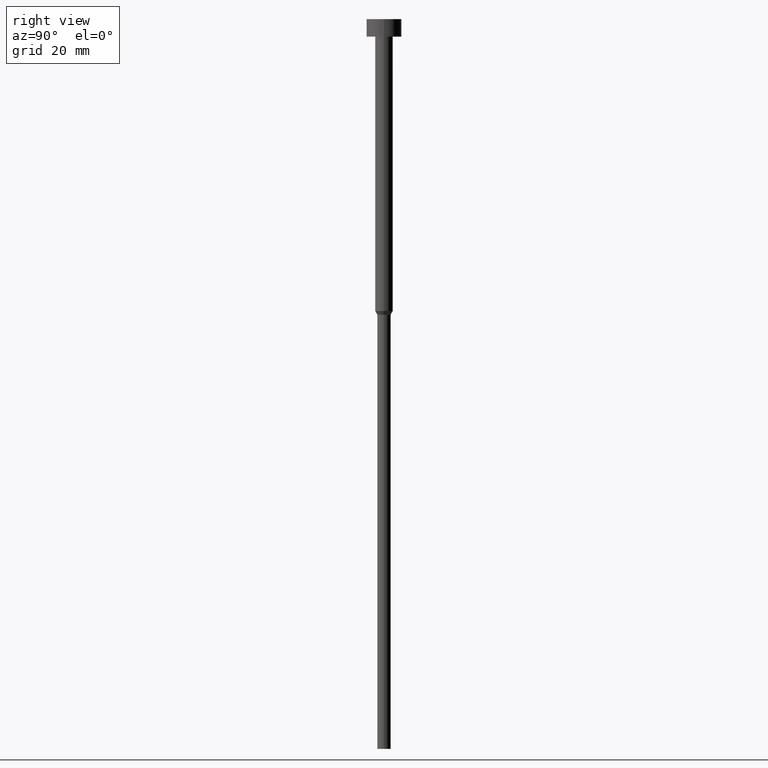
[diagram: clean part render]
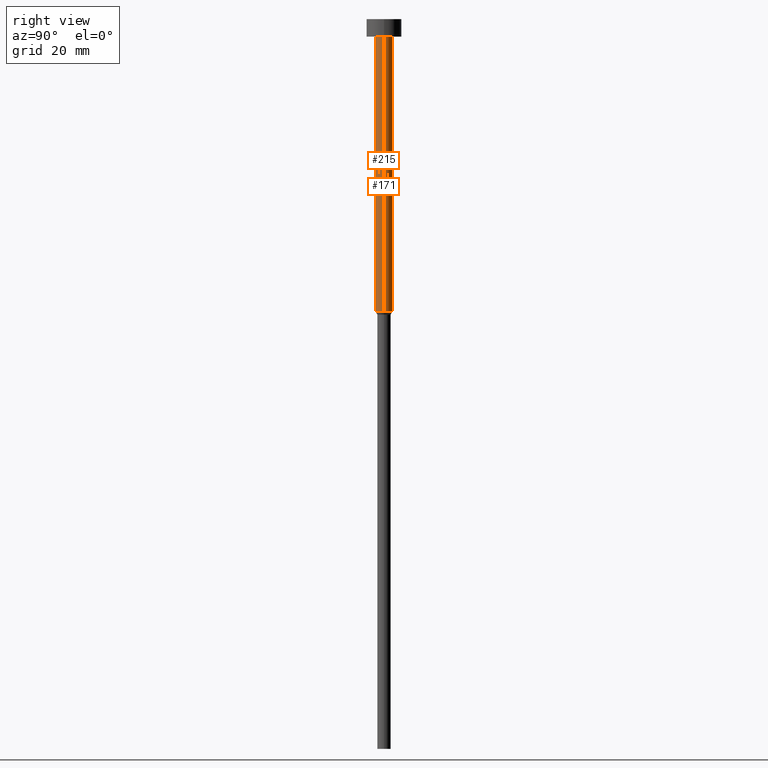
[diagram: same view with one multi-face feature highlighted, each face labeled with its STEP entity id]
A machine part, right view. The highlighted faces form ONE feature: a constant-radius fillet chain: 2 tangent blend faces with common blend radius 1.5 mm. The faces share edges in the B-rep.
Their STEP definitions:
[1] entity #215 (Cylinder):
#15 = CARTESIAN_POINT ( 'NONE',  ( 1.500000000000000000, 0.000000000000000000, -50.00000000000000000 ) ) ;
#23 = EDGE_LOOP ( 'NONE', ( #343, #341, #154, #83 ) ) ;
#27 = EDGE_CURVE ( 'NONE', #140, #64, #318, .T. ) ;
#32 = AXIS2_PLACEMENT_3D ( 'NONE', #139, #117, #229 ) ;
#44 = EDGE_CURVE ( 'NONE', #140, #194, #197, .T. ) ;
#58 = VERTEX_POINT ( 'NONE', #174 ) ;
#61 = DIRECTION ( 'NONE',  ( 1.000000000000000000, 0.000000000000000000, 0.000000000000000000 ) ) ;
#64 = VERTEX_POINT ( 'NONE', #313 ) ;
#83 = ORIENTED_EDGE ( 'NONE', *, *, #116, .F. ) ;
#86 = DIRECTION ( 'NONE',  ( -0.000000000000000000, -0.000000000000000000, 1.000000000000000000 ) ) ;
#96 = VECTOR ( 'NONE', #305, 1000.000000000000000 ) ;
#101 = FACE_OUTER_BOUND ( 'NONE', #23, .T. ) ;
#109 = CIRCLE ( 'NONE', #157, 1.500000000000000000 ) ;
#116 = EDGE_CURVE ( 'NONE', #64, #58, #109, .T. ) ;
#117 = DIRECTION ( 'NONE',  ( -0.000000000000000000, -0.000000000000000000, 1.000000000000000000 ) ) ;
#127 = CARTESIAN_POINT ( 'NONE',  ( 0.000000000000000000, 0.000000000000000000, 0.000000000000000000 ) ) ;
#136 = CARTESIAN_POINT ( 'NONE',  ( -1.500000000000000000, 1.836970198721029934E-16, 0.000000000000000000 ) ) ;
#139 = CARTESIAN_POINT ( 'NONE',  ( 0.000000000000000000, 0.000000000000000000, -50.00000000000000000 ) ) ;
#140 = VERTEX_POINT ( 'NONE', #266 ) ;
#151 = CYLINDRICAL_SURFACE ( 'NONE', #168, 1.500000000000000000 ) ;
#154 = ORIENTED_EDGE ( 'NONE', *, *, #217, .T. ) ;
#156 = CARTESIAN_POINT ( 'NONE',  ( 0.000000000000000000, 0.000000000000000000, -3.000000000000000888 ) ) ;
#157 = AXIS2_PLACEMENT_3D ( 'NONE', #156, #270, #231 ) ;
#168 = AXIS2_PLACEMENT_3D ( 'NONE', #127, #86, #61 ) ;
#174 = CARTESIAN_POINT ( 'NONE',  ( 1.500000000000000000, 0.000000000000000000, -3.000000000000000888 ) ) ;
#184 = CARTESIAN_POINT ( 'NONE',  ( 1.500000000000000000, 0.000000000000000000, 0.000000000000000000 ) ) ;
#194 = VERTEX_POINT ( 'NONE', #15 ) ;
#197 = CIRCLE ( 'NONE', #32, 1.500000000000000000 ) ;
#215 = ADVANCED_FACE ( 'NONE', ( #101 ), #151, .T. ) ;
#217 = EDGE_CURVE ( 'NONE', #194, #58, #335, .T. ) ;
#229 = DIRECTION ( 'NONE',  ( 1.000000000000000000, 0.000000000000000000, 0.000000000000000000 ) ) ;
#231 = DIRECTION ( 'NONE',  ( 1.000000000000000000, 0.000000000000000000, 0.000000000000000000 ) ) ;
#266 = CARTESIAN_POINT ( 'NONE',  ( -1.500000000000000000, 1.836970198721029934E-16, -50.00000000000000000 ) ) ;
#270 = DIRECTION ( 'NONE',  ( -0.000000000000000000, -0.000000000000000000, 1.000000000000000000 ) ) ;
#276 = VECTOR ( 'NONE', #342, 1000.000000000000000 ) ;
#305 = DIRECTION ( 'NONE',  ( -0.000000000000000000, -0.000000000000000000, 1.000000000000000000 ) ) ;
#313 = CARTESIAN_POINT ( 'NONE',  ( -1.500000000000000000, 1.836970198721029934E-16, -3.000000000000000888 ) ) ;
#318 = LINE ( 'NONE', #136, #276 ) ;
#335 = LINE ( 'NONE', #184, #96 ) ;
#341 = ORIENTED_EDGE ( 'NONE', *, *, #44, .T. ) ;
#342 = DIRECTION ( 'NONE',  ( -0.000000000000000000, -0.000000000000000000, 1.000000000000000000 ) ) ;
#343 = ORIENTED_EDGE ( 'NONE', *, *, #27, .F. ) ;
[2] entity #171 (Cylinder):
#3 = CIRCLE ( 'NONE', #246, 1.500000000000000000 ) ;
#15 = CARTESIAN_POINT ( 'NONE',  ( 1.500000000000000000, 0.000000000000000000, -50.00000000000000000 ) ) ;
#20 = CARTESIAN_POINT ( 'NONE',  ( 0.000000000000000000, 0.000000000000000000, 0.000000000000000000 ) ) ;
#27 = EDGE_CURVE ( 'NONE', #140, #64, #318, .T. ) ;
#47 = AXIS2_PLACEMENT_3D ( 'NONE', #20, #73, #294 ) ;
#58 = VERTEX_POINT ( 'NONE', #174 ) ;
#64 = VERTEX_POINT ( 'NONE', #313 ) ;
#68 = CARTESIAN_POINT ( 'NONE',  ( 0.000000000000000000, 0.000000000000000000, -3.000000000000000888 ) ) ;
#73 = DIRECTION ( 'NONE',  ( -0.000000000000000000, -0.000000000000000000, 1.000000000000000000 ) ) ;
#85 = ORIENTED_EDGE ( 'NONE', *, *, #27, .T. ) ;
#95 = EDGE_CURVE ( 'NONE', #194, #140, #129, .T. ) ;
#96 = VECTOR ( 'NONE', #305, 1000.000000000000000 ) ;
#106 = ORIENTED_EDGE ( 'NONE', *, *, #204, .F. ) ;
#129 = CIRCLE ( 'NONE', #218, 1.500000000000000000 ) ;
#136 = CARTESIAN_POINT ( 'NONE',  ( -1.500000000000000000, 1.836970198721029934E-16, 0.000000000000000000 ) ) ;
#140 = VERTEX_POINT ( 'NONE', #266 ) ;
#171 = ADVANCED_FACE ( 'NONE', ( #203 ), #321, .T. ) ;
#174 = CARTESIAN_POINT ( 'NONE',  ( 1.500000000000000000, 0.000000000000000000, -3.000000000000000888 ) ) ;
#175 = DIRECTION ( 'NONE',  ( -0.000000000000000000, -0.000000000000000000, 1.000000000000000000 ) ) ;
#184 = CARTESIAN_POINT ( 'NONE',  ( 1.500000000000000000, 0.000000000000000000, 0.000000000000000000 ) ) ;
#194 = VERTEX_POINT ( 'NONE', #15 ) ;
#203 = FACE_OUTER_BOUND ( 'NONE', #254, .T. ) ;
#204 = EDGE_CURVE ( 'NONE', #58, #64, #3, .T. ) ;
#217 = EDGE_CURVE ( 'NONE', #194, #58, #335, .T. ) ;
#218 = AXIS2_PLACEMENT_3D ( 'NONE', #300, #175, #348 ) ;
#246 = AXIS2_PLACEMENT_3D ( 'NONE', #68, #298, #353 ) ;
#254 = EDGE_LOOP ( 'NONE', ( #262, #85, #106, #351 ) ) ;
#262 = ORIENTED_EDGE ( 'NONE', *, *, #95, .T. ) ;
#266 = CARTESIAN_POINT ( 'NONE',  ( -1.500000000000000000, 1.836970198721029934E-16, -50.00000000000000000 ) ) ;
#276 = VECTOR ( 'NONE', #342, 1000.000000000000000 ) ;
#294 = DIRECTION ( 'NONE',  ( 1.000000000000000000, 0.000000000000000000, 0.000000000000000000 ) ) ;
#298 = DIRECTION ( 'NONE',  ( -0.000000000000000000, -0.000000000000000000, 1.000000000000000000 ) ) ;
#300 = CARTESIAN_POINT ( 'NONE',  ( 0.000000000000000000, 0.000000000000000000, -50.00000000000000000 ) ) ;
#305 = DIRECTION ( 'NONE',  ( -0.000000000000000000, -0.000000000000000000, 1.000000000000000000 ) ) ;
#313 = CARTESIAN_POINT ( 'NONE',  ( -1.500000000000000000, 1.836970198721029934E-16, -3.000000000000000888 ) ) ;
#318 = LINE ( 'NONE', #136, #276 ) ;
#321 = CYLINDRICAL_SURFACE ( 'NONE', #47, 1.500000000000000000 ) ;
#335 = LINE ( 'NONE', #184, #96 ) ;
#342 = DIRECTION ( 'NONE',  ( -0.000000000000000000, -0.000000000000000000, 1.000000000000000000 ) ) ;
#348 = DIRECTION ( 'NONE',  ( 1.000000000000000000, 0.000000000000000000, 0.000000000000000000 ) ) ;
#351 = ORIENTED_EDGE ( 'NONE', *, *, #217, .F. ) ;
#353 = DIRECTION ( 'NONE',  ( 1.000000000000000000, 0.000000000000000000, 0.000000000000000000 ) ) ;